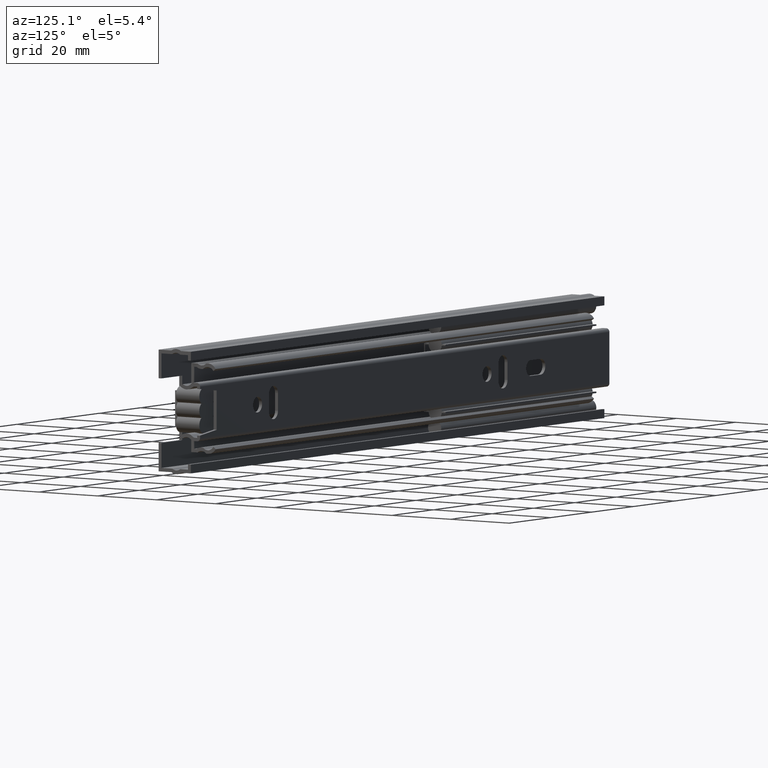
[diagram: clean part render]
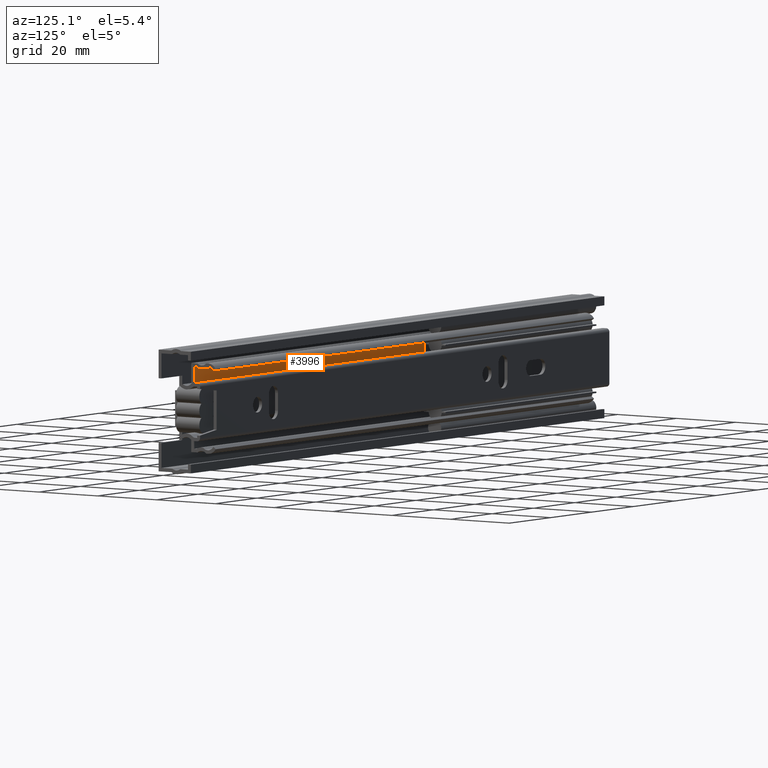
[diagram: same view with one face highlighted and labeled with its STEP entity id]
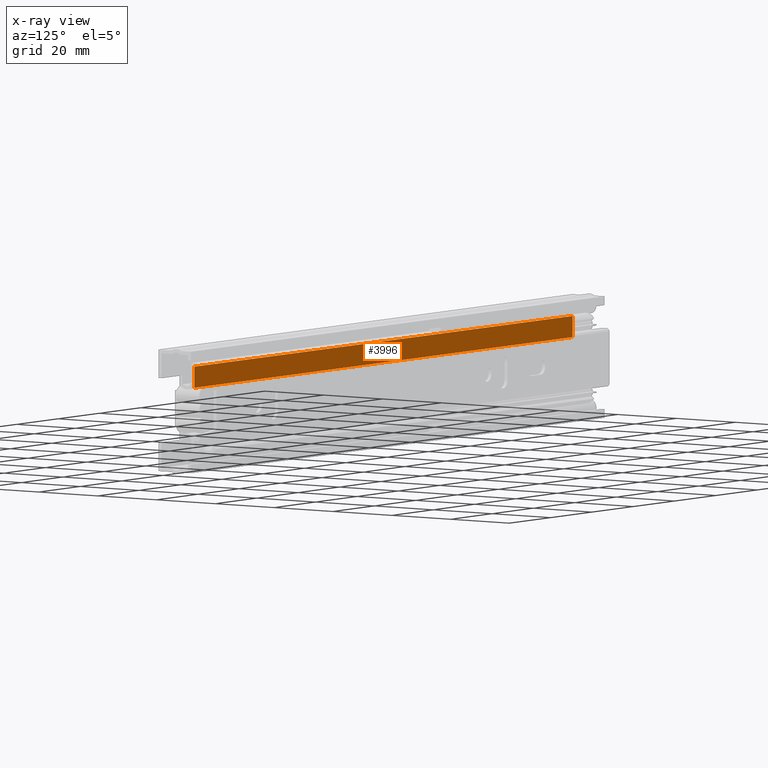
[diagram: x-ray of the same camera — body ghosted, the highlighted face saturated]
A machine part, auxiliary view. The second image highlights one B-rep face of the part: STEP entity #3996.
The next image is the same camera in x-ray: the body ghosted, the highlighted face saturated — about 0% of this face is hidden behind the body in this view.
In plain terms, the highlighted planar face has unit normal (0, 1, -0).
Its self-contained STEP definition (entity closure, byte-faithful):
#305=FACE_OUTER_BOUND('',#543,.T.);
#543=EDGE_LOOP('',(#3318,#3319,#3320,#3321));
#862=LINE('',#6250,#1288);
#889=LINE('',#6314,#1315);
#905=LINE('',#6353,#1331);
#906=LINE('',#6355,#1332);
#1288=VECTOR('',#5076,5.9);
#1315=VECTOR('',#5137,5.9);
#1331=VECTOR('',#5181,183.);
#1332=VECTOR('',#5184,183.);
#1851=VERTEX_POINT('',#6247);
#1852=VERTEX_POINT('',#6249);
#1871=VERTEX_POINT('',#6311);
#1872=VERTEX_POINT('',#6313);
#2335=EDGE_CURVE('',#1851,#1852,#862,.T.);
#2367=EDGE_CURVE('',#1871,#1872,#889,.T.);
#2387=EDGE_CURVE('',#1851,#1872,#905,.T.);
#2388=EDGE_CURVE('',#1852,#1871,#906,.T.);
#3318=ORIENTED_EDGE('',*,*,#2387,.T.);
#3319=ORIENTED_EDGE('',*,*,#2367,.F.);
#3320=ORIENTED_EDGE('',*,*,#2388,.F.);
#3321=ORIENTED_EDGE('',*,*,#2335,.F.);
#3814=PLANE('',#4309);
#3996=ADVANCED_FACE('',(#305),#3814,.T.);
#4309=AXIS2_PLACEMENT_3D('',#6354,#5182,#5183);
#5076=DIRECTION('',(0.,-5.64520182012791E-16,-1.));
#5137=DIRECTION('',(0.,5.64520182012791E-16,1.));
#5181=DIRECTION('',(1.,0.,0.));
#5182=DIRECTION('center_axis',(0.,1.,-5.64520182012791E-16));
#5183=DIRECTION('ref_axis',(0.,5.77315972805081E-16,1.));
#5184=DIRECTION('',(1.,0.,0.));
#6247=CARTESIAN_POINT('',(-91.5,3.50000000000001,11.45));
#6249=CARTESIAN_POINT('',(-91.5,3.50000000000001,5.55));
#6250=CARTESIAN_POINT('',(-91.5,3.50000000000001,5.55));
#6311=CARTESIAN_POINT('',(91.5,3.50000000000001,5.55));
#6313=CARTESIAN_POINT('',(91.5,3.50000000000001,11.45));
#6314=CARTESIAN_POINT('',(91.5,3.50000000000001,5.55));
#6353=CARTESIAN_POINT('',(0.,3.50000000000001,11.45));
#6354=CARTESIAN_POINT('Origin',(0.,3.50000000000001,5.55));
#6355=CARTESIAN_POINT('',(0.,3.50000000000001,5.55));